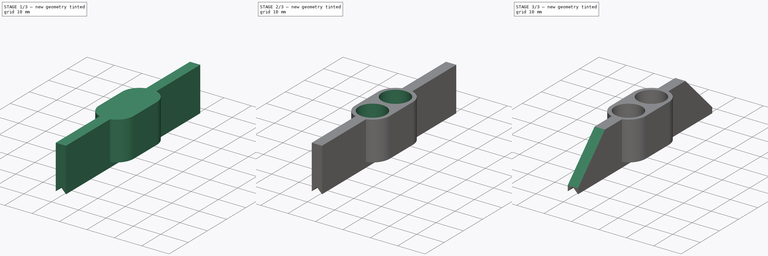
[diagram: build sequence overview — one tinted view per stage of 3, left to right]
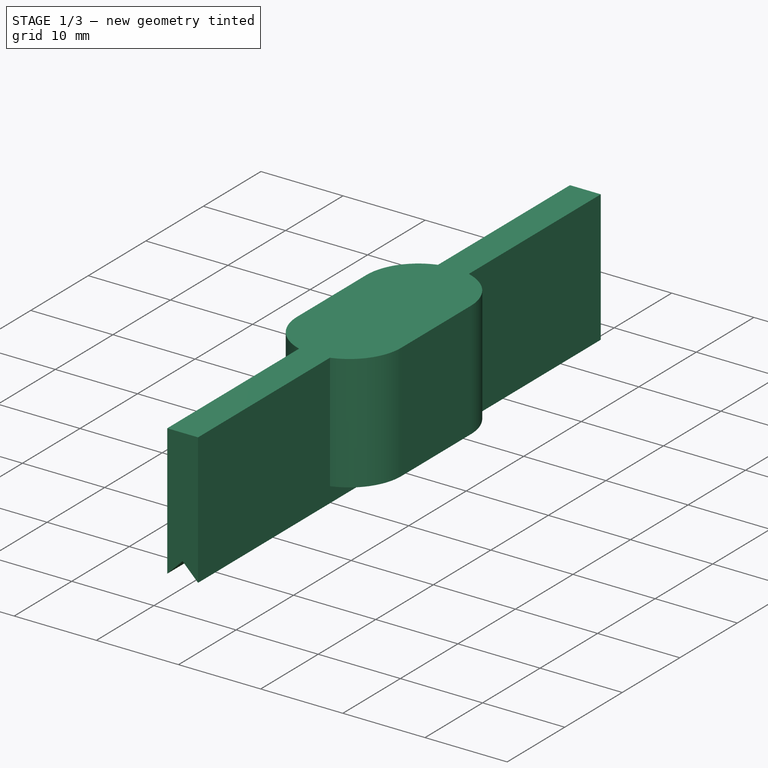
[diagram: stage 1 of 3 — iso view after this stage's code; geometry added in this stage tinted green]
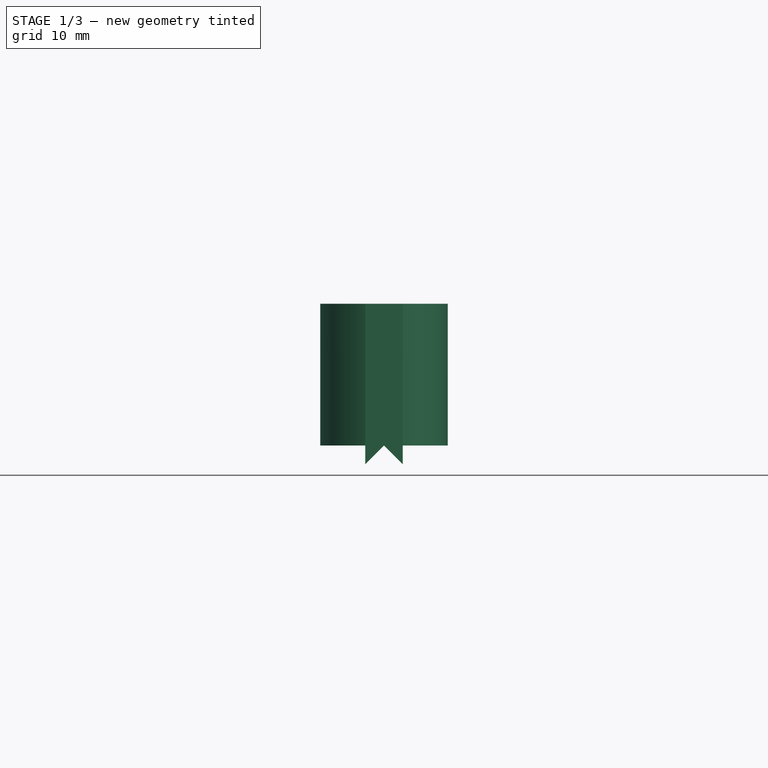
[diagram: stage 1 of 3 — front view after this stage's code; geometry added in this stage tinted green]
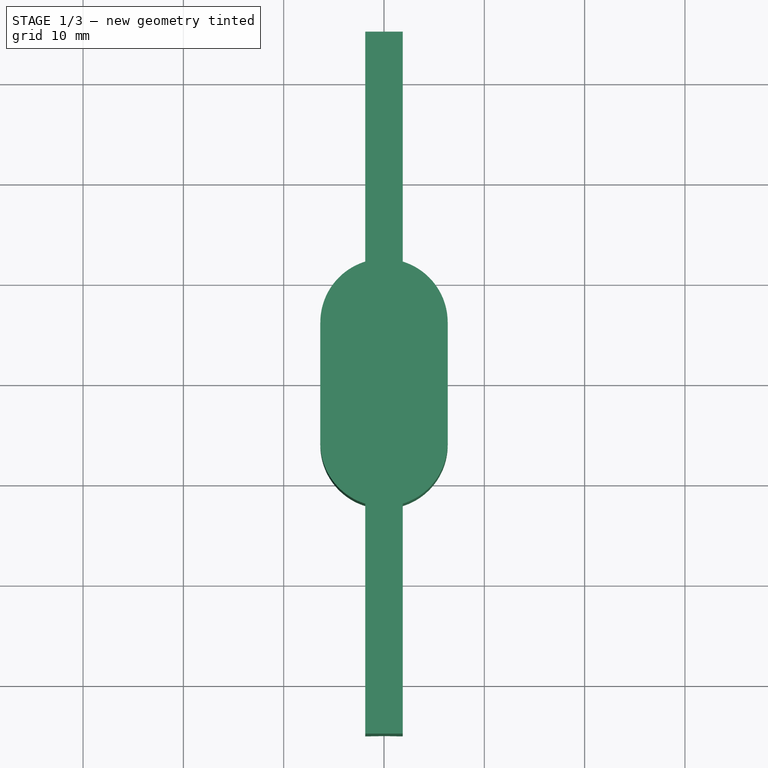
[diagram: stage 1 of 3 — top view after this stage's code; geometry added in this stage tinted green]
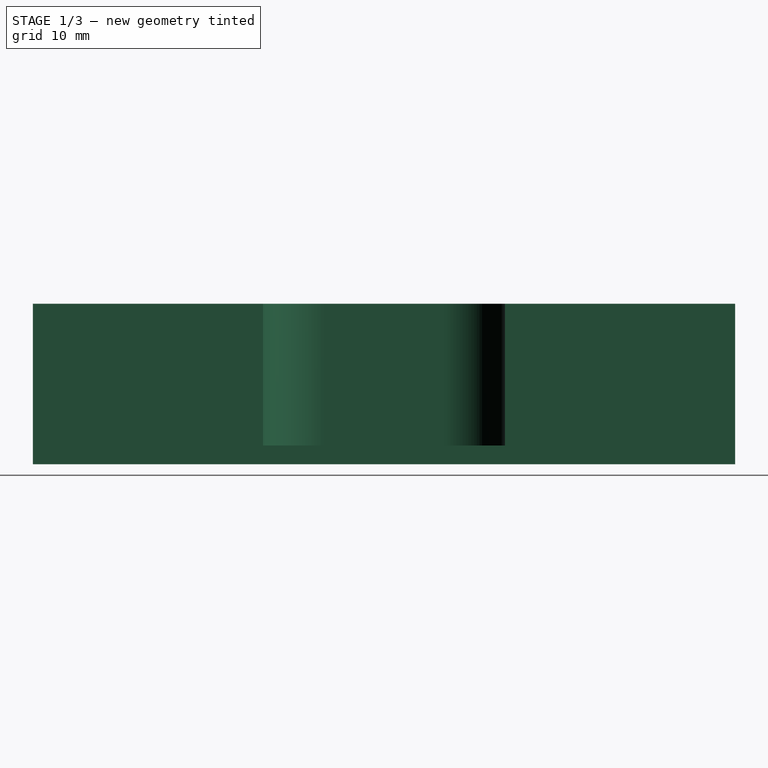
[diagram: stage 1 of 3 — right view after this stage's code; geometry added in this stage tinted green]
FCSTD DOCUMENT  (FreeCAD 1.0R39109 (Git))
Label: Alweco_GreenHouse_Shade_SpringInsert
License: All rights reserved
objects: Sketcher::SketchObject×4, PartDesign::Pad×2, PartDesign::Pocket×2, PartDesign::Fillet×1, PartDesign::Body×1
note: 24 computed .brp shape members not serialized (recipe doc carries the construction recipe); baked Part::Feature solids carry a one-line shape summary decoded from their .brp
EXTERNAL_REF file=Alweco_GreenHouse_Shade_Base.FCStd obj=Sketch
EXTERNAL_REF file=Alweco_GreenHouse_Shade_Base.FCStd obj=Sketch001

FEATURE [Sketcher::SketchObject] Sketch
  ArcFitTolerance = 1e-06
  AttachmentSupport = -> [XZ_Plane]
  FullyConstrained = true
  MakeInternals = false
  MapMode = 5
  Placement = pos=(0,0,0) rot=(1,0,0;1.5708rad)
  expr: .Constraints.Height = <<Alweco_GreenHouse_Shade_Base>>#<<Sketch>>.Constraints.InnerHeight - 4 mm
  expr: Constraints[9] = 3.75 mm
  sketch-geometry (5):
    g0: LineSegment StartX=0 StartY=1.875 StartZ=0 EndX=-1.875 EndY=0 EndZ=0
    g1: LineSegment StartX=0 StartY=1.875 StartZ=0 EndX=1.875 EndY=0 EndZ=0
    g2: LineSegment StartX=-1.875 StartY=0 StartZ=0 EndX=-1.875 EndY=16 EndZ=0
    g3: LineSegment StartX=1.875 StartY=0 StartZ=0 EndX=1.875 EndY=16 EndZ=0
    g4: LineSegment StartX=-1.875 StartY=16 StartZ=0 EndX=1.875 EndY=16 EndZ=0
  constraints (15):
    c: PointOnObject(g0,g-2)
    c: Coincident(g1,g0)
    c: Symmetric(g0,g1,g-2)
    c: Coincident(g2,g0)
    c: Vertical(g2)
    c: Coincident(g3,g1)
    c: Vertical(g3)
    c: PointOnObject(g1,g-1)
    c: Angle(g0,g1) = 1.5708
    c: DistanceX(g0,g1) = 3.75
    c: Coincident(g4,g2)
    c: Coincident(g4,g3)
    c: Horizontal(g4)
    c: DistanceY(g3,g3) = 16  'Height'
    c: DistanceY(g-1,g0) = 1.875  'SlotHeight'
FEATURE [PartDesign::Pad] Pad
  Direction = (0,-1,2e-16)
  Length = 70
  Length2 = 10
  Midplane = true
  Placement = pos=(0,0,0) rot=(1,0,0;1.5708rad)
  Profile = -> Sketch
  ReferenceAxis = -> Sketch [N_Axis]
  Refine = true
  Suppressed = false
  Type = 0
FEATURE [Sketcher::SketchObject] Sketch001
  ArcFitTolerance = 1e-06
  AttachmentSupport = -> [Pad]
  FullyConstrained = true
  MakeInternals = false
  MapMode = 5
  Placement = pos=(0,3.6e-15,16) rot=(0,0,1;3.14159rad)
  expr: Constraints[7] = <<Alweco_GreenHouse_Shade_Base>>#<<Sketch001>>.Constraints.Height
  expr: Constraints[8] = <<Alweco_GreenHouse_Shade_Base>>#<<Sketch001>>.Constraints.Width - 0.3 mm
  sketch-geometry (4):
    g0: ArcOfCircle CenterX=0 CenterY=6 CenterZ=0 NormalX=0 NormalY=0 NormalZ=1 AngleXU=0 Radius=6.35 StartAngle=1e-16 EndAngle=3.14159
    g1: ArcOfCircle CenterX=0 CenterY=-6 CenterZ=0 NormalX=0 NormalY=0 NormalZ=1 AngleXU=0 Radius=6.35 StartAngle=3.14159 EndAngle=6.28319
    g2: LineSegment StartX=6.35 StartY=6 StartZ=0 EndX=6.35 EndY=-6 EndZ=0
    g3: LineSegment StartX=-6.35 StartY=6 StartZ=0 EndX=-6.35 EndY=-6 EndZ=0
  constraints (9):
    c: Tangent(g0,g2) = 1.5708
    c: Tangent(g0,g3) = -1.5708
    c: Tangent(g1,g2) = 1.5708
    c: Tangent(g1,g3) = -1.5708
    c: Equal(g0,g1)
    c: PointOnObject(g0,g-2)
    c: Symmetric(g0,g1,g-1)
    c: DistanceY(g1,g0) = 12
    c: Distance(g1,g1) = 12.7
FEATURE [PartDesign::Pad] Pad001
  BaseFeature = -> Pad
  Direction = (0,0,1)
  Length = 14.125
  Length2 = 10
  Placement = pos=(0,0,0) rot=(1,0,0;1.5708rad)
  Profile = -> Sketch001
  ReferenceAxis = -> Sketch001 [N_Axis]
  Refine = true
  Reversed = true
  Suppressed = false
  Type = 0
  expr: Length = <<Sketch>>.Constraints.Height - <<Sketch>>.Constraints.SlotHeight
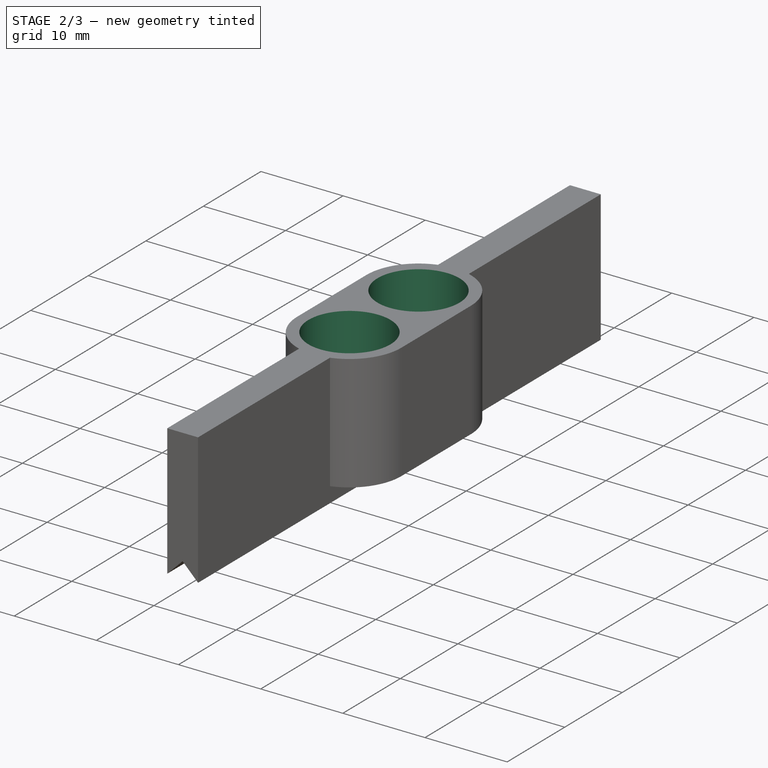
[diagram: stage 2 of 3 — iso view after this stage's code; geometry added in this stage tinted green]
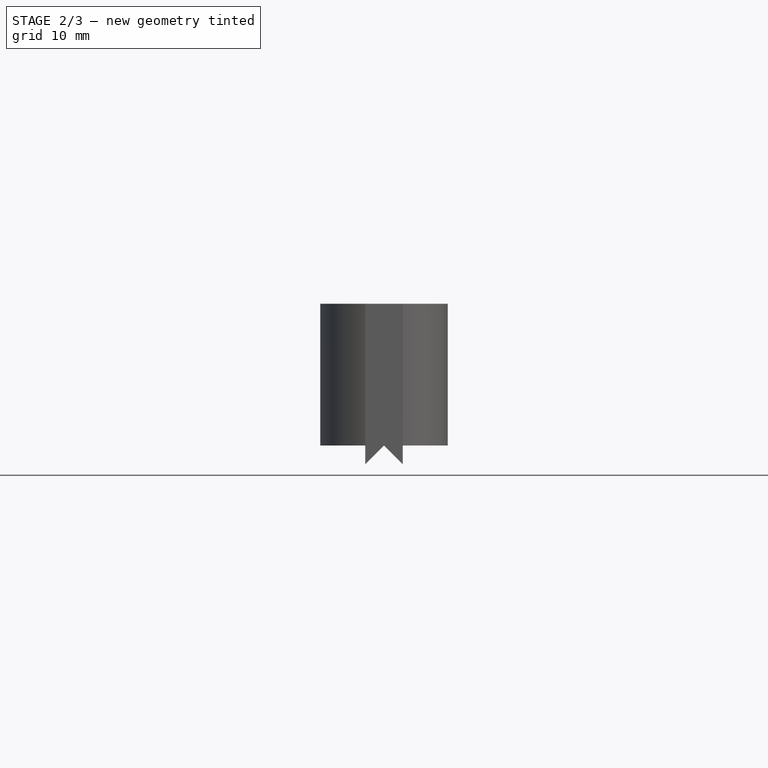
[diagram: stage 2 of 3 — front view after this stage's code; geometry added in this stage tinted green]
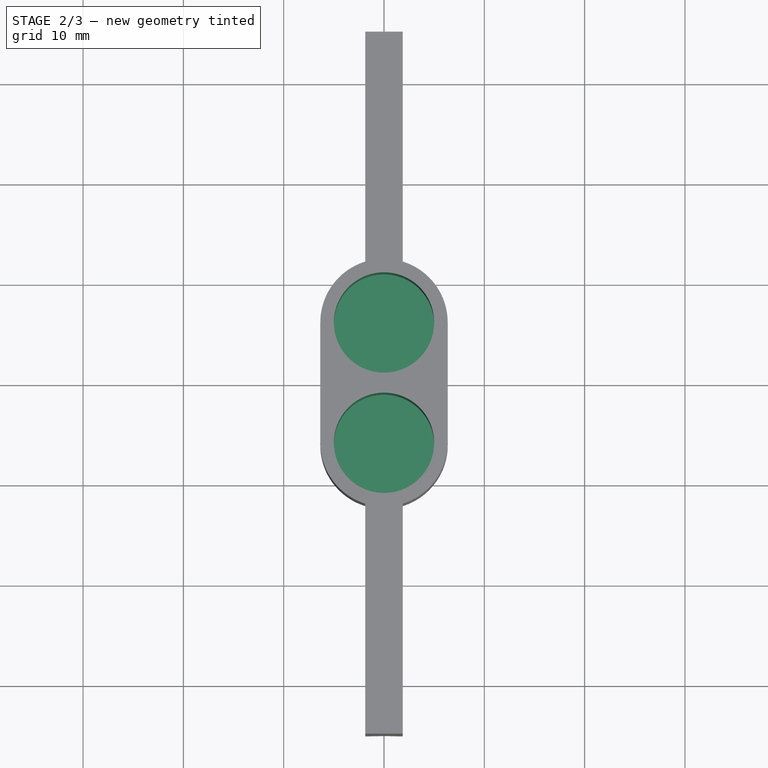
[diagram: stage 2 of 3 — top view after this stage's code; geometry added in this stage tinted green]
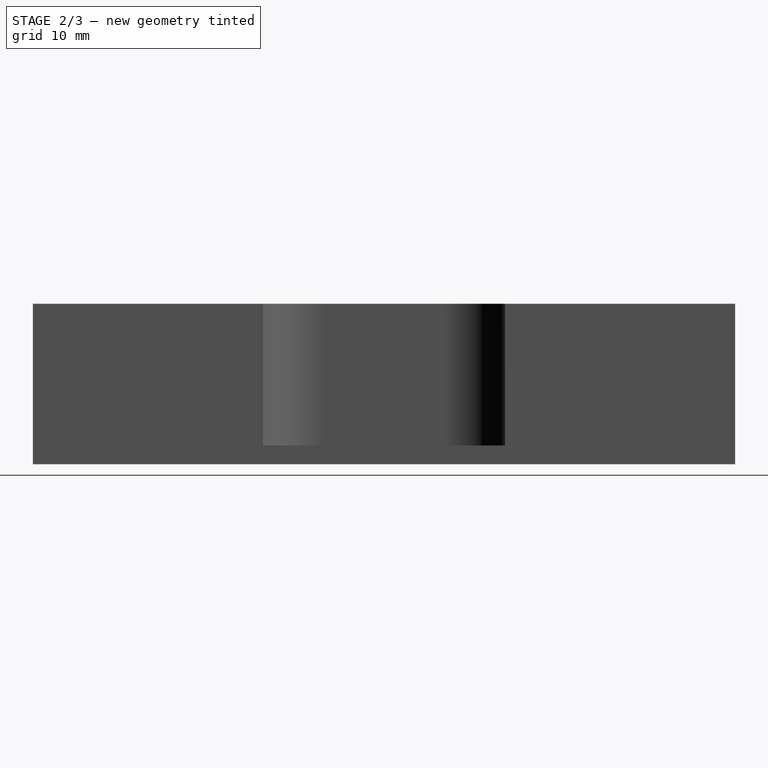
[diagram: stage 2 of 3 — right view after this stage's code; geometry added in this stage tinted green]
FEATURE [Sketcher::SketchObject] Sketch005  label="Sketch002"
  ArcFitTolerance = 1e-06
  AttachmentSupport = -> [YZ_Plane]
  FullyConstrained = true
  MakeInternals = false
  MapMode = 5
  Placement = pos=(0,0,0) rot=(0.57735,0.57735,0.57735;2.0944rad)
  sketch-geometry (6):
    g0: LineSegment StartX=-36 StartY=25 StartZ=0 EndX=-36 EndY=1 EndZ=0
    g1: LineSegment StartX=-36 StartY=25 StartZ=0 EndX=-12 EndY=25 EndZ=0
    g2: LineSegment StartX=-12 StartY=25 StartZ=0 EndX=-36 EndY=1 EndZ=0
    g3: LineSegment StartX=12 StartY=25 StartZ=0 EndX=36 EndY=25 EndZ=0
    g4: LineSegment StartX=36 StartY=25 StartZ=0 EndX=36 EndY=1 EndZ=0
    g5: LineSegment StartX=36 StartY=1 StartZ=0 EndX=12 EndY=25 EndZ=0
  constraints (17):
    c: Vertical(g0)
    c: Coincident(g1,g0)
    c: Horizontal(g1)
    c: Coincident(g2,g1)
    c: Coincident(g2,g0)
    c: Equal(g1,g0)
    c: DistanceX(g1,g1) = 24
    c: Horizontal(g3)
    c: Coincident(g4,g3)
    c: Vertical(g4)
    c: Coincident(g5,g4)
    c: Coincident(g5,g3)
    c: Equal(g1,g3)
    c: Equal(g3,g4)
    c: Symmetric(g0,g3,g-2)
    c: DistanceX(g0,g-1) = 36
    c: DistanceY(g-1,g0) = 25
FEATURE [Sketcher::SketchObject] Sketch006
  ArcFitTolerance = 1e-06
  AttachmentSupport = -> [Pad001]
  FullyConstrained = true
  MakeInternals = false
  MapMode = 5
  Placement = pos=(0,3.1e-15,16) rot=(0,0,1;3.14159rad)
  sketch-geometry (2):
    g0: Circle CenterX=0 CenterY=6 CenterZ=0 NormalX=0 NormalY=0 NormalZ=1 AngleXU=0 Radius=5
    g1: Circle CenterX=0 CenterY=-6 CenterZ=0 NormalX=0 NormalY=0 NormalZ=1 AngleXU=0 Radius=5
  constraints (5):
    c: PointOnObject(g0,g-2)
    c: Equal(g1,g0)
    c: Diameter(g0) = 10
    c: Symmetric(g0,g1,g-1)
    c: DistanceY(g1,g0) = 12
FEATURE [PartDesign::Pocket] Pocket
  BaseFeature = -> Pad001
  Direction = (0,0,-1)
  Length = 12
  Length2 = 5
  Placement = pos=(0,0,0) rot=(1,0,0;1.5708rad)
  Profile = -> Sketch006
  ReferenceAxis = -> Sketch006 [N_Axis]
  Refine = true
  Suppressed = false
  Type = 0
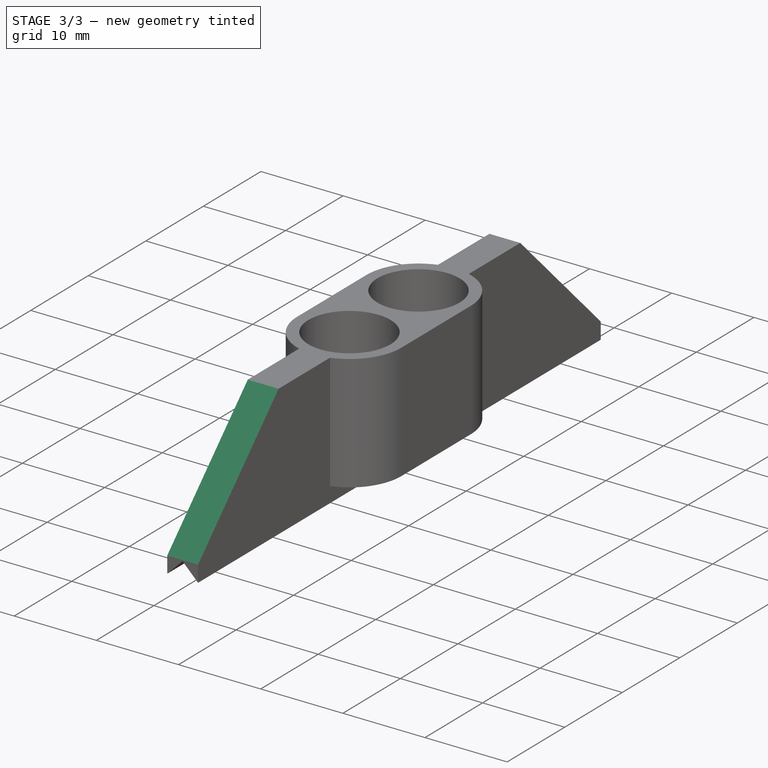
[diagram: stage 3 of 3 — iso view after this stage's code; geometry added in this stage tinted green]
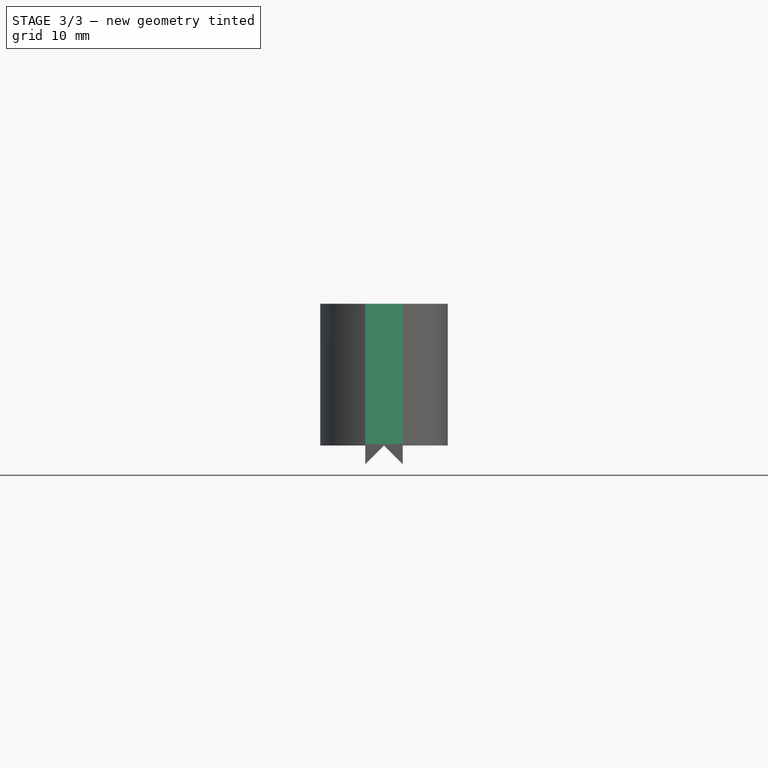
[diagram: stage 3 of 3 — front view after this stage's code; geometry added in this stage tinted green]
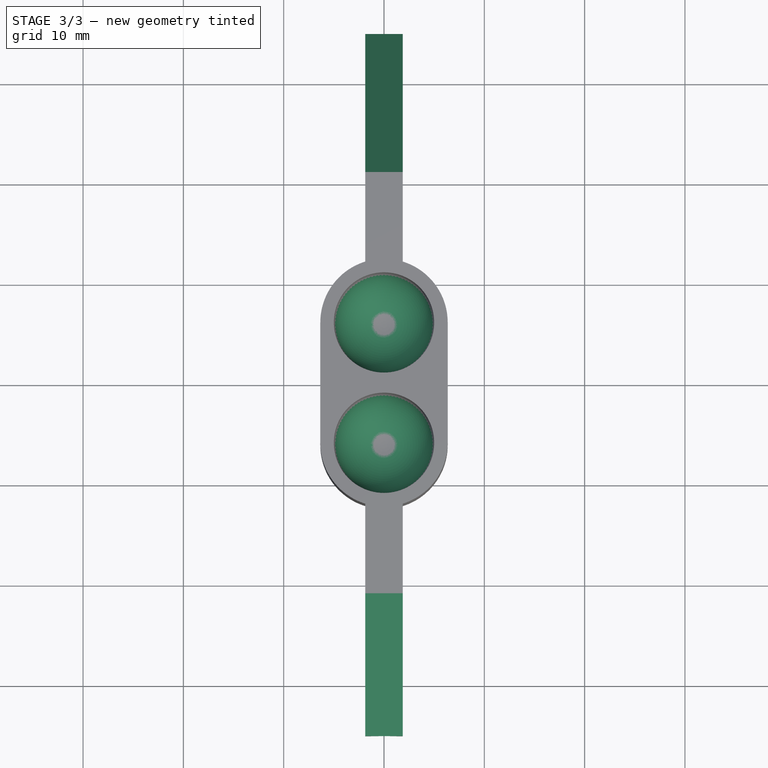
[diagram: stage 3 of 3 — top view after this stage's code; geometry added in this stage tinted green]
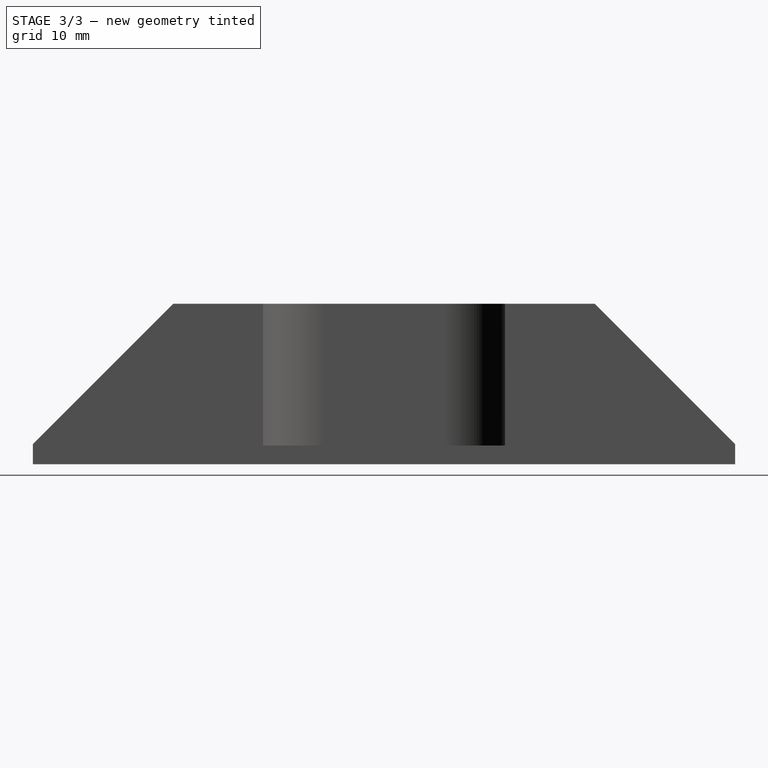
[diagram: stage 3 of 3 — right view after this stage's code; geometry added in this stage tinted green]
FEATURE [PartDesign::Pocket] Pocket001
  BaseFeature = -> Pocket
  Direction = (-1,0,0)
  Length = 5
  Length2 = 5
  Midplane = true
  Placement = pos=(0,0,0) rot=(1,0,0;1.5708rad)
  Profile = -> Sketch005
  ReferenceAxis = -> Sketch005 [N_Axis]
  Refine = true
  Suppressed = false
  Type = 0
FEATURE [PartDesign::Fillet] Fillet
  Base = -> Pocket001 [Face21,Face20]
  BaseFeature = -> Pocket001
  Placement = pos=(0,0,0) rot=(1,0,0;1.5708rad)
  Radius = 5
  Refine = true
  SupportTransform = false
  Suppressed = false
  UseAllEdges = false
FEATURE [PartDesign::Body] Body  label="Alweco_GreenHouse_Shade_SpringInsert"
  AllowCompound = false
  Group = -> [Sketch,Pad,Sketch001,Pad001,Sketch006,Pocket,Sketch005,Pocket001,Fillet]
  Origin = -> Origin
  Tip = -> Fillet
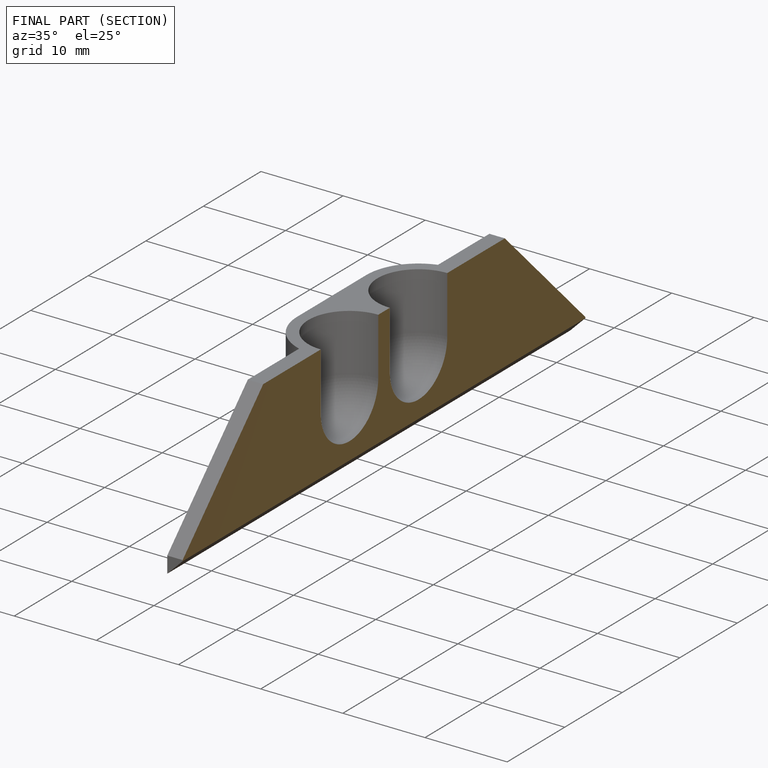
[diagram: finished part — half-section view (interior)]
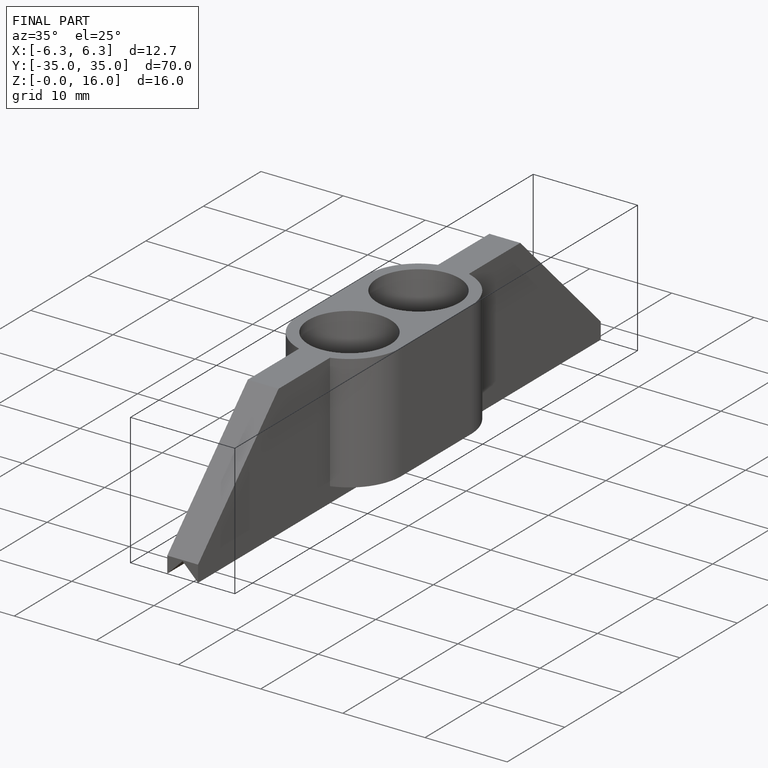
[diagram: finished part — iso view with bounding-box wireframe]
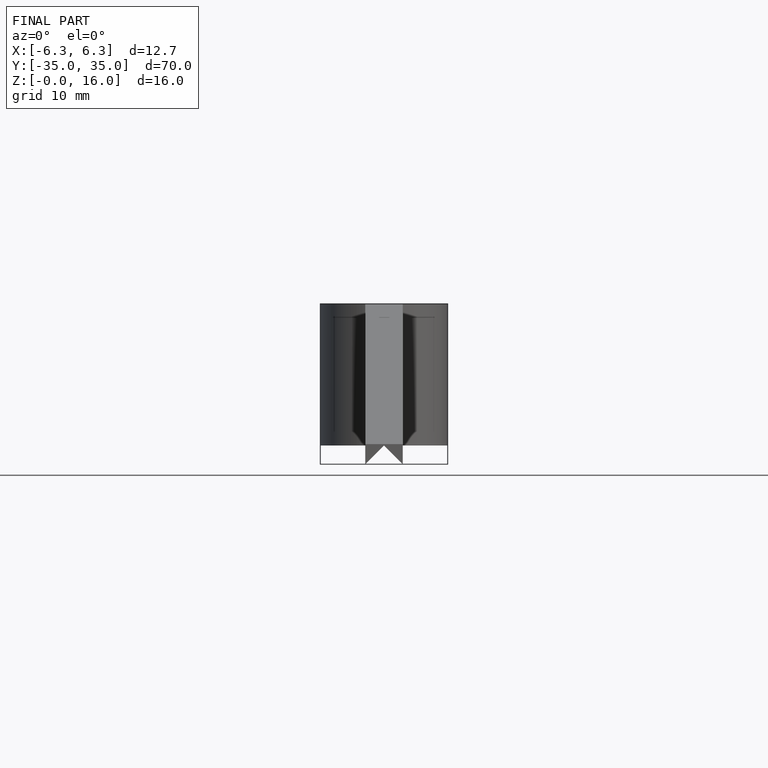
[diagram: finished part — front view with bounding-box wireframe]
